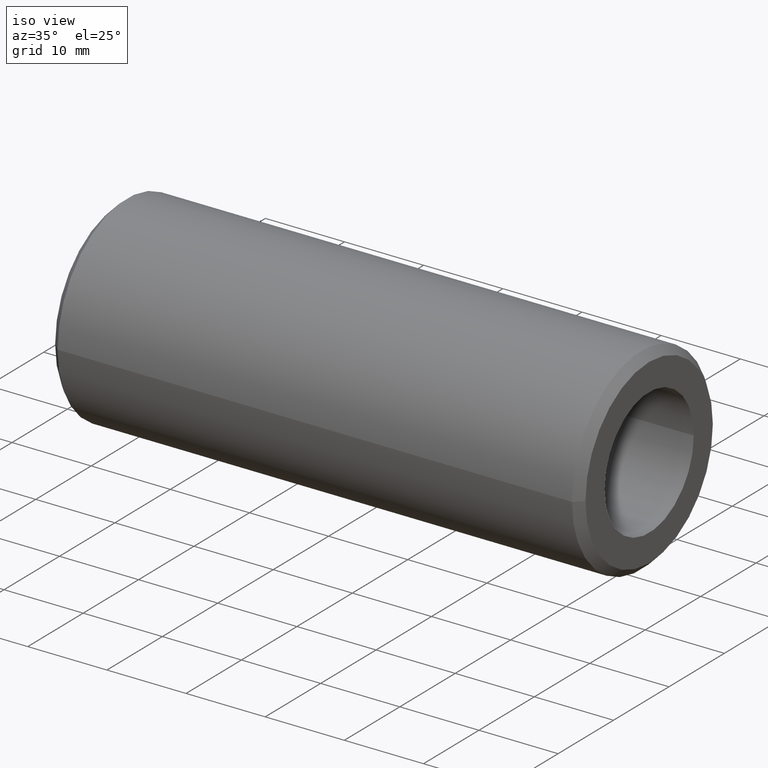
[diagram: clean part render]
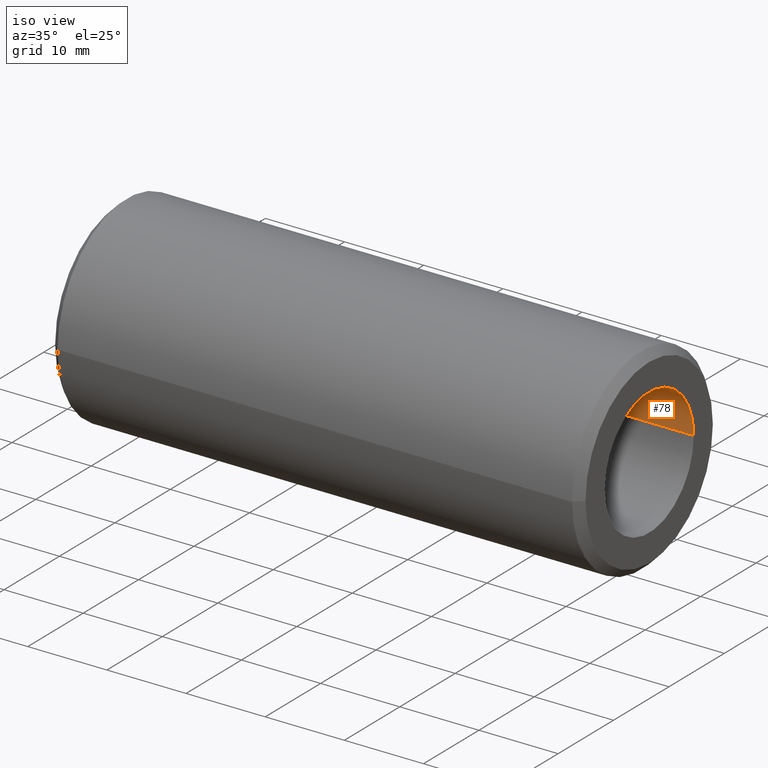
[diagram: same view with one face highlighted and labeled with its STEP entity id]
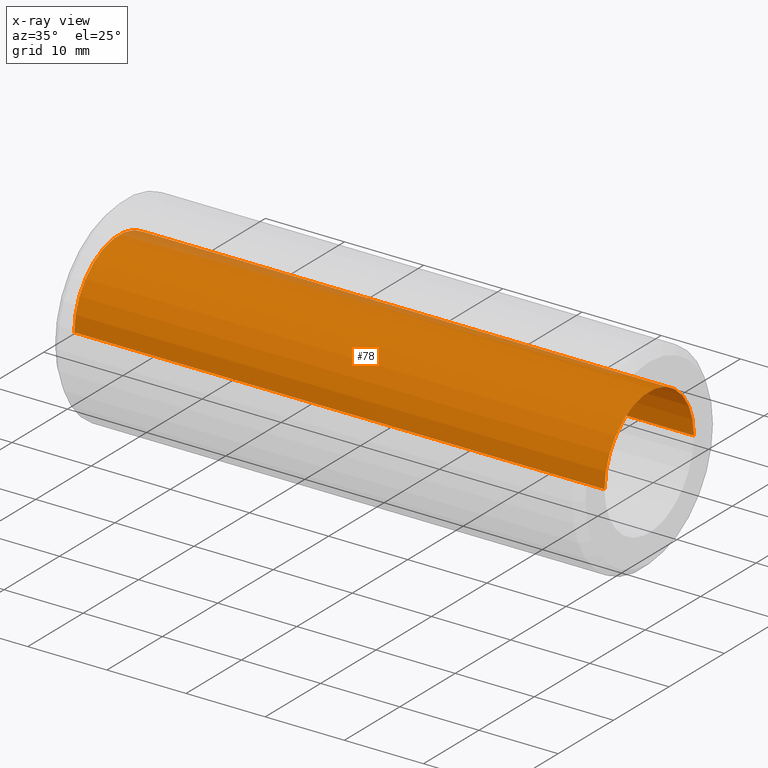
[diagram: x-ray of the same camera — body ghosted, the highlighted face saturated]
A machine part, iso view. The second image highlights one B-rep face of the part: STEP entity #78.
The next image is the same camera in x-ray: the body ghosted, the highlighted face saturated — about 4% of this face is hidden behind the body in this view.
In plain terms, the highlighted cylindrical surface (partial cylindrical patch) has radius 8.05 mm, axis along (1, 0, -0).
Its self-contained STEP definition (entity closure, byte-faithful):
#20 = CARTESIAN_POINT ( 'NONE',  ( -33.50000000000000000, -8.388830574159368693E-15, 0.000000000000000000 ) ) ;
#23 = VECTOR ( 'NONE', #51, 1000.000000000000000 ) ;
#28 = CARTESIAN_POINT ( 'NONE',  ( -33.50000000000000000, -8.388830574159368693E-15, 0.000000000000000000 ) ) ;
#38 = CIRCLE ( 'NONE', #330, 8.050000000000000711 ) ;
#49 = DIRECTION ( 'NONE',  ( 1.000000000000000000, 3.061616997868382648E-16, -0.000000000000000000 ) ) ;
#51 = DIRECTION ( 'NONE',  ( 1.000000000000000000, 3.061616997868382648E-16, -0.000000000000000000 ) ) ;
#54 = DIRECTION ( 'NONE',  ( 1.000000000000000000, 3.061616997868382648E-16, 0.000000000000000000 ) ) ;
#68 = ORIENTED_EDGE ( 'NONE', *, *, #244, .F. ) ;
#78 = ADVANCED_FACE ( 'NONE', ( #239 ), #95, .F. ) ;
#94 = ORIENTED_EDGE ( 'NONE', *, *, #188, .T. ) ;
#95 = CYLINDRICAL_SURFACE ( 'NONE', #320, 8.050000000000000711 ) ;
#99 = EDGE_CURVE ( 'NONE', #306, #328, #185, .T. ) ;
#100 = DIRECTION ( 'NONE',  ( 1.000000000000000000, 3.061616997868382648E-16, -0.000000000000000000 ) ) ;
#124 = LINE ( 'NONE', #178, #23 ) ;
#127 = DIRECTION ( 'NONE',  ( 1.000000000000000000, 3.061616997868382648E-16, 0.000000000000000000 ) ) ;
#133 = CARTESIAN_POINT ( 'NONE',  ( 33.50000000000000000, 8.050000000000011369, 0.000000000000000000 ) ) ;
#135 = DIRECTION ( 'NONE',  ( 0.000000000000000000, 1.000000000000000000, 0.000000000000000000 ) ) ;
#152 = CARTESIAN_POINT ( 'NONE',  ( -33.50000000000000000, 8.049999999999991829, 0.000000000000000000 ) ) ;
#154 = DIRECTION ( 'NONE',  ( 0.000000000000000000, 1.000000000000000000, 0.000000000000000000 ) ) ;
#160 = CARTESIAN_POINT ( 'NONE',  ( -33.50000000000000000, -8.050000000000007816, 9.858406733136206248E-16 ) ) ;
#172 = VERTEX_POINT ( 'NONE', #152 ) ;
#178 = CARTESIAN_POINT ( 'NONE',  ( -33.50000000000000000, 8.049999999999991829, 0.000000000000000000 ) ) ;
#185 = CIRCLE ( 'NONE', #236, 8.050000000000000711 ) ;
#188 = EDGE_CURVE ( 'NONE', #172, #306, #124, .T. ) ;
#210 = DIRECTION ( 'NONE',  ( 0.000000000000000000, 1.000000000000000000, 0.000000000000000000 ) ) ;
#216 = CARTESIAN_POINT ( 'NONE',  ( -33.50000000000000000, -8.050000000000007816, 9.858406733136194415E-16 ) ) ;
#226 = ORIENTED_EDGE ( 'NONE', *, *, #99, .T. ) ;
#231 = ORIENTED_EDGE ( 'NONE', *, *, #282, .F. ) ;
#236 = AXIS2_PLACEMENT_3D ( 'NONE', #340, #127, #210 ) ;
#239 = FACE_OUTER_BOUND ( 'NONE', #243, .T. ) ;
#243 = EDGE_LOOP ( 'NONE', ( #68, #231, #94, #226 ) ) ;
#244 = EDGE_CURVE ( 'NONE', #278, #328, #343, .T. ) ;
#272 = CARTESIAN_POINT ( 'NONE',  ( 33.50000000000000000, -8.049999999999988276, 9.858406733136194415E-16 ) ) ;
#278 = VERTEX_POINT ( 'NONE', #160 ) ;
#282 = EDGE_CURVE ( 'NONE', #172, #278, #38, .T. ) ;
#306 = VERTEX_POINT ( 'NONE', #133 ) ;
#316 = VECTOR ( 'NONE', #49, 1000.000000000000000 ) ;
#320 = AXIS2_PLACEMENT_3D ( 'NONE', #20, #100, #154 ) ;
#328 = VERTEX_POINT ( 'NONE', #272 ) ;
#330 = AXIS2_PLACEMENT_3D ( 'NONE', #28, #54, #135 ) ;
#340 = CARTESIAN_POINT ( 'NONE',  ( 33.50000000000000000, 1.212400331155879387E-14, 0.000000000000000000 ) ) ;
#343 = LINE ( 'NONE', #216, #316 ) ;